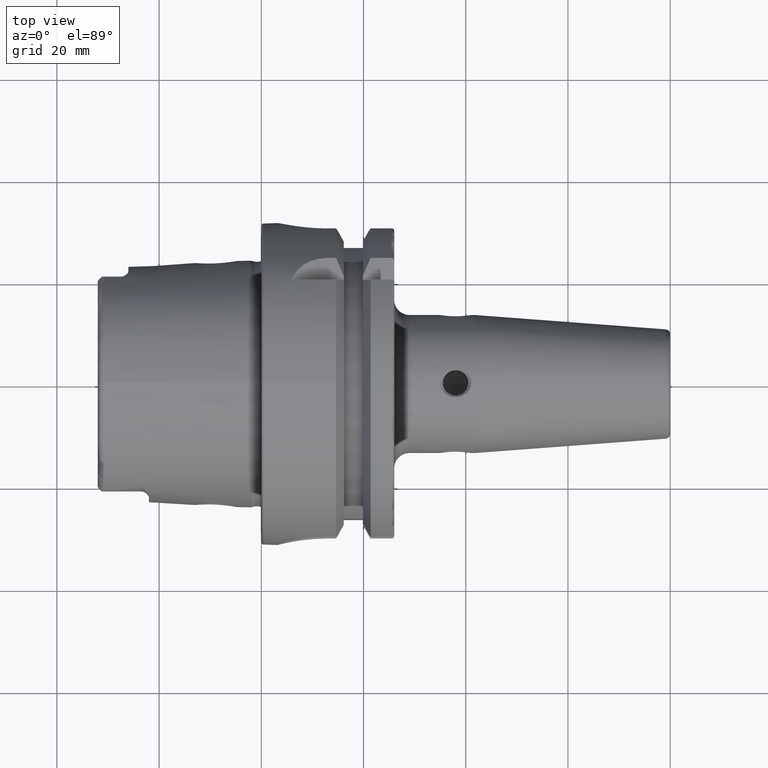
[diagram: clean part render]
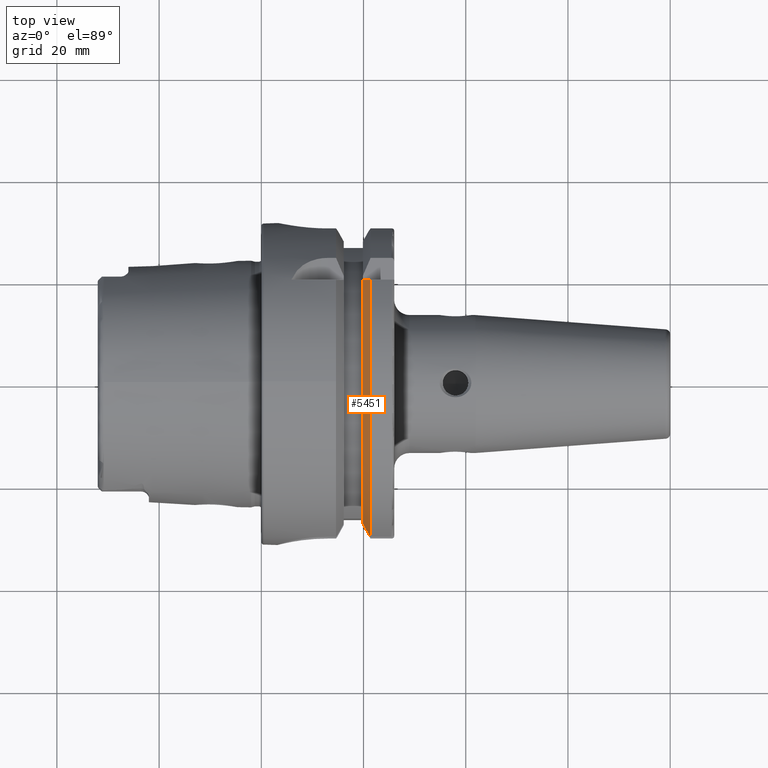
[diagram: same view with one face highlighted and labeled with its STEP entity id]
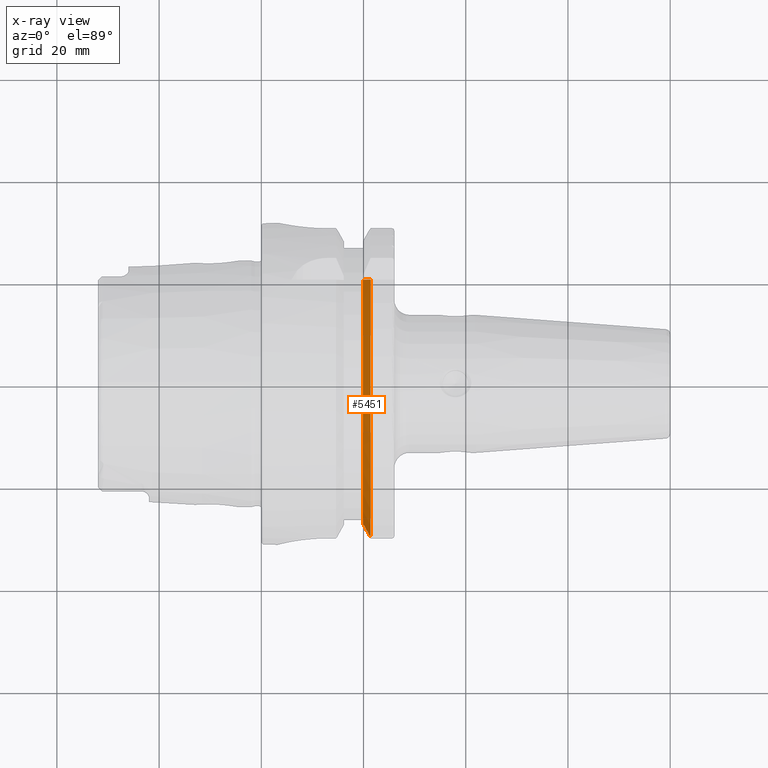
[diagram: x-ray of the same camera — body ghosted, the highlighted face saturated]
A machine part, top view. The second image highlights one B-rep face of the part: STEP entity #5451.
The next image is the same camera in x-ray: the body ghosted, the highlighted face saturated — about 0% of this face is hidden behind the body in this view.
In plain terms, the highlighted conical surface has half-angle 60 deg.
Its self-contained STEP definition (entity closure, byte-faithful):
#1964=CARTESIAN_POINT('',(8.416338210270E-1,-1.183982137824E0,
3.690215079028E-1));
#1965=CARTESIAN_POINT('',(8.398514377041E-1,-1.181516858694E0,
3.665562287724E-1));
#1966=CARTESIAN_POINT('',(8.363024929716E-1,-1.176603114318E0,
3.616424843965E-1));
#1967=CARTESIAN_POINT('',(8.327852029129E-1,-1.171722993783E0,
3.567623638617E-1));
#1968=CARTESIAN_POINT('',(8.310344740385E-1,-1.169291338583E0,
3.543307086614E-1));
#1970=CARTESIAN_POINT('',(7.824803149606E-1,-1.081116279368E0,
3.543307086614E-1));
#1971=CARTESIAN_POINT('',(7.877227286396E-1,-1.090671649109E0,
3.543307086614E-1));
#1972=CARTESIAN_POINT('',(7.983094176575E-1,-1.109943475659E0,
3.543307086614E-1));
#1973=CARTESIAN_POINT('',(8.144929136786E-1,-1.139332183876E0,
3.543307086614E-1));
#1974=CARTESIAN_POINT('',(8.254867172302E-1,-1.159250845764E0,
3.543307086614E-1));
#1975=CARTESIAN_POINT('',(8.310344740385E-1,-1.169291338583E0,
3.543307086614E-1));
#1977=CARTESIAN_POINT('',(7.824803149606E-1,0.E0,0.E0));
#1978=DIRECTION('',(-1.E0,0.E0,0.E0));
#1979=DIRECTION('',(0.E0,-9.502643112990E-1,3.114445996827E-1));
#1980=AXIS2_PLACEMENT_3D('',#1977,#1978,#1979);
#1982=CARTESIAN_POINT('',(7.824803149606E-1,7.874015748031E-1,
8.211951172607E-1));
#1983=CARTESIAN_POINT('',(7.884767181517E-1,7.874015748031E-1,
8.355841991286E-1));
#1984=CARTESIAN_POINT('',(8.008501561357E-1,7.874015748031E-1,
8.649129530116E-1));
#1985=CARTESIAN_POINT('',(8.205460962649E-1,7.874015748031E-1,
9.105150512359E-1));
#1986=CARTESIAN_POINT('',(8.344729399100E-1,7.874015748031E-1,
9.420635318422E-1));
#1987=CARTESIAN_POINT('',(8.416338210270E-1,7.874015748031E-1,
9.581176002865E-1));
#1989=CARTESIAN_POINT('',(8.416338210270E-1,0.E0,0.E0));
#1990=DIRECTION('',(1.E0,0.E0,0.E0));
#1991=DIRECTION('',(0.E0,6.349206349206E-1,7.725773665802E-1));
#1992=AXIS2_PLACEMENT_3D('',#1989,#1990,#1991);
#2853=CARTESIAN_POINT('',(7.824803149606E-1,-1.081116279368E0,
3.543307086614E-1));
#2854=VERTEX_POINT('',#2853);
#2875=CARTESIAN_POINT('',(7.824803149606E-1,7.874015748031E-1,
8.211951172607E-1));
#2877=VERTEX_POINT('',#2875);
#2881=VERTEX_POINT('',#1987);
#3053=VERTEX_POINT('',#1964);
#3054=VERTEX_POINT('',#1968);
#5437=CARTESIAN_POINT('',(8.120570679938E-1,0.E0,0.E0));
#5438=DIRECTION('',(1.E0,0.E0,0.E0));
#5439=DIRECTION('',(0.E0,0.E0,1.E0));
#5440=AXIS2_PLACEMENT_3D('',#5437,#5438,#5439);
#5441=CONICAL_SURFACE('',#5440,1.188929041339E0,6.E1);
#5442=ORIENTED_EDGE('',*,*,#5187,.T.);
#5443=ORIENTED_EDGE('',*,*,#5221,.F.);
#5445=ORIENTED_EDGE('',*,*,#5444,.T.);
#5447=ORIENTED_EDGE('',*,*,#5446,.T.);
#5448=ORIENTED_EDGE('',*,*,#4782,.T.);
#5449=EDGE_LOOP('',(#5442,#5443,#5445,#5447,#5448));
#5450=FACE_OUTER_BOUND('',#5449,.F.);
#5451=ADVANCED_FACE('',(#5450),#5441,.T.);
#1969=B_SPLINE_CURVE_WITH_KNOTS('',3,(#1964,#1965,#1966,#1967,#1968),
.UNSPECIFIED.,.F.,.F.,(4,1,4),(0.E0,5.E-1,1.E0),.UNSPECIFIED.);
#1976=B_SPLINE_CURVE_WITH_KNOTS('',3,(#1970,#1971,#1972,#1973,#1974,#1975),
.UNSPECIFIED.,.F.,.F.,(4,1,1,4),(0.E0,3.333333333333E-1,6.666666666667E-1,1.E0),
.UNSPECIFIED.);
#1981=CIRCLE('',#1980,1.137700602362E0);
#1988=B_SPLINE_CURVE_WITH_KNOTS('',3,(#1982,#1983,#1984,#1985,#1986,#1987),
.UNSPECIFIED.,.F.,.F.,(4,1,1,4),(0.E0,3.333333333333E-1,6.666666666667E-1,1.E0),
.UNSPECIFIED.);
#1993=CIRCLE('',#1992,1.240157480315E0);
#4782=EDGE_CURVE('',#2881,#3053,#1993,.T.);
#5187=EDGE_CURVE('',#3053,#3054,#1969,.T.);
#5221=EDGE_CURVE('',#2854,#3054,#1976,.T.);
#5444=EDGE_CURVE('',#2854,#2877,#1981,.T.);
#5446=EDGE_CURVE('',#2877,#2881,#1988,.T.);